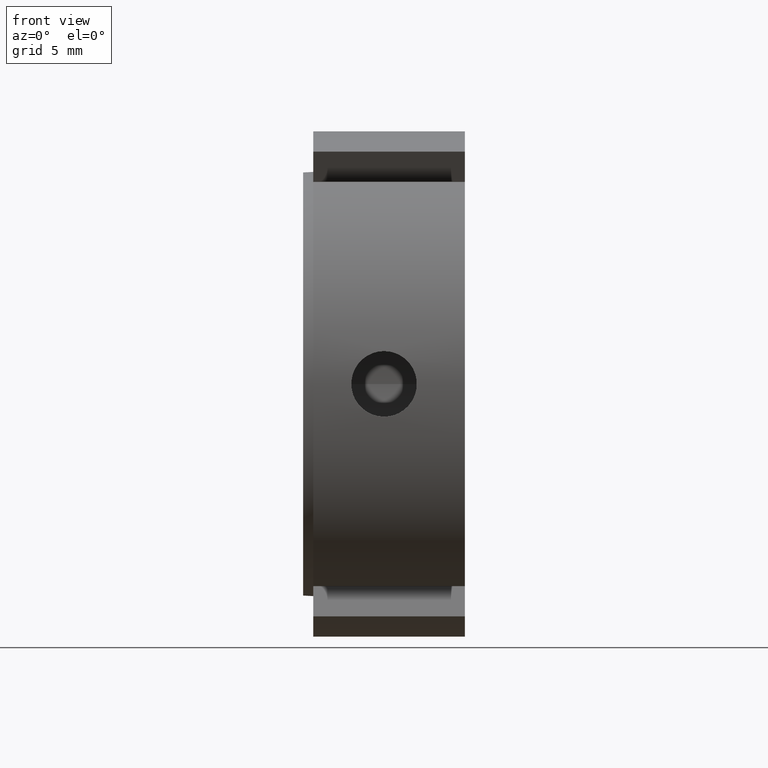
[diagram: clean part render]
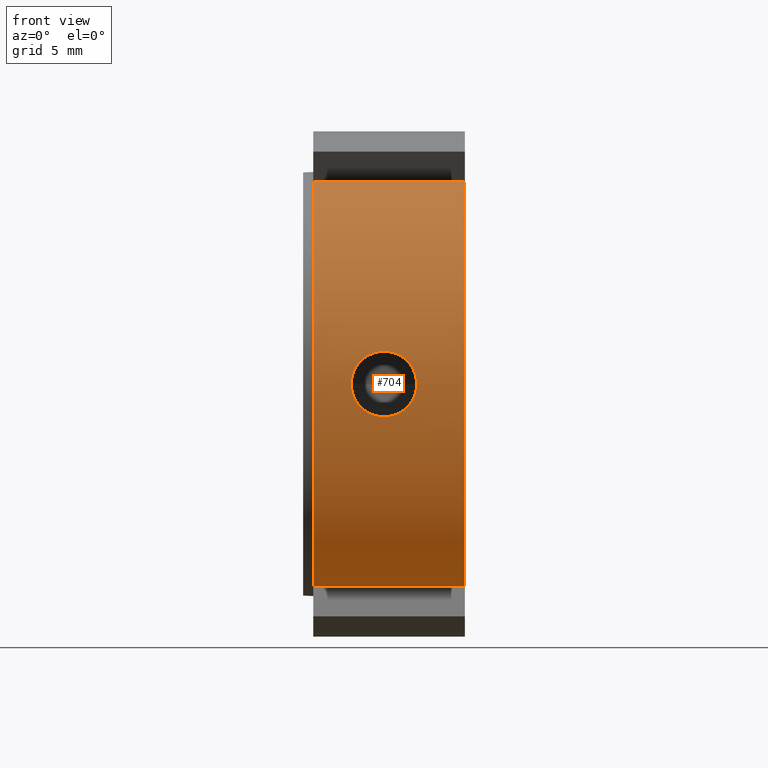
[diagram: same view with one face highlighted and labeled with its STEP entity id]
A machine part, front view. The second image highlights one B-rep face of the part: STEP entity #704.
In plain terms, the highlighted cylindrical surface (partial cylindrical patch) has radius 12.5 mm, axis along (1, 0, 0).
Its self-contained STEP definition (entity closure, byte-faithful):
#75=CARTESIAN_POINT('',(0.499999999999998,-7.503874928672091,-9.997092630102335));
#76=VERTEX_POINT('',#75);
#91=CARTESIAN_POINT('',(7.999999999999996,-7.503874928672091,-9.997092630102335));
#92=VERTEX_POINT('',#91);
#99=CARTESIAN_POINT('',(0.499999999999998,-7.503874928672092,-9.997092630102333));
#100=DIRECTION('',(1.0,0.0,0.0));
#101=VECTOR('',#100,7.499999999999998);
#102=LINE('',#99,#101);
#103=EDGE_CURVE('',#76,#92,#102,.T.);
#311=CARTESIAN_POINT('',(0.499999999999998,-7.503874928672083,9.997092630102340));
#312=VERTEX_POINT('',#311);
#321=CARTESIAN_POINT('',(7.999999999999996,-7.503874928672083,9.997092630102340));
#322=VERTEX_POINT('',#321);
#323=CARTESIAN_POINT('',(7.999999999999996,-7.503874928672083,9.997092630102340));
#324=DIRECTION('',(-1.0,0.0,0.0));
#325=VECTOR('',#324,7.499999999999998);
#326=LINE('',#323,#325);
#327=EDGE_CURVE('',#322,#312,#326,.T.);
#513=CARTESIAN_POINT('',(0.499999999999998,0.0,0.0));
#514=DIRECTION('',(1.0,0.0,0.0));
#515=DIRECTION('',(0.0,1.0,0.0));
#516=AXIS2_PLACEMENT_3D('',#513,#514,#515);
#517=CIRCLE('',#516,12.499999999999998);
#518=EDGE_CURVE('',#312,#76,#517,.T.);
#583=CARTESIAN_POINT('',(7.999999999999996,0.0,0.0));
#584=DIRECTION('',(1.0,0.0,0.0));
#585=DIRECTION('',(0.0,1.0,0.0));
#586=AXIS2_PLACEMENT_3D('',#583,#584,#585);
#587=CIRCLE('',#586,12.499999999999998);
#588=EDGE_CURVE('',#322,#92,#587,.T.);
#652=CARTESIAN_POINT('',(4.249999999999997,0.0,0.0));
#653=DIRECTION('',(1.0,0.0,0.0));
#654=DIRECTION('',(0.0,1.0,0.0));
#655=AXIS2_PLACEMENT_3D('',#652,#653,#654);
#656=CYLINDRICAL_SURFACE('',#655,12.499999999999998);
#657=ORIENTED_EDGE('',*,*,#103,.T.);
#658=ORIENTED_EDGE('',*,*,#588,.F.);
#659=ORIENTED_EDGE('',*,*,#327,.T.);
#660=ORIENTED_EDGE('',*,*,#518,.T.);
#661=EDGE_LOOP('',(#657,#658,#659,#660));
#662=FACE_OUTER_BOUND('',#661,.T.);
#663=CARTESIAN_POINT('',(3.999999999999996,-12.394448717066844,1.621000000000000));
#664=VERTEX_POINT('',#663);
#665=CARTESIAN_POINT('',(3.999999999999996,-12.394448717066844,1.621000000000000));
#666=CARTESIAN_POINT('',(4.203783961701885,-12.394448717066844,1.621000000000000));
#667=CARTESIAN_POINT('',(4.420992470797524,-12.399993182347322,1.580226680770943));
#668=CARTESIAN_POINT('',(4.820304367155238,-12.419963583124922,1.414726767963858));
#669=CARTESIAN_POINT('',(5.002427579897870,-12.434095025216557,1.290012604708913));
#670=CARTESIAN_POINT('',(5.290011211629800,-12.460577328781170,1.002428972976983));
#671=CARTESIAN_POINT('',(5.414726466705028,-12.474656743850588,0.820305155471852));
#672=CARTESIAN_POINT('',(5.580227178760655,-12.494507906543470,0.420991207816045));
#673=CARTESIAN_POINT('',(5.620999999999996,-12.499999999999996,0.203781987418423));
#674=CARTESIAN_POINT('',(5.620999999999996,-12.499999999999998,-0.203781987418423));
#675=CARTESIAN_POINT('',(5.580227178760655,-12.494507906543470,-0.420991207816044));
#676=CARTESIAN_POINT('',(5.414726466705028,-12.474656743850588,-0.820305155471852));
#677=CARTESIAN_POINT('',(5.290011211629801,-12.460577328781174,-1.002428972976983));
#678=CARTESIAN_POINT('',(5.002427579897870,-12.434095025216557,-1.290012604708912));
#679=CARTESIAN_POINT('',(4.820304367155238,-12.419963583124922,-1.414726767963858));
#680=CARTESIAN_POINT('',(4.420992470797525,-12.399993182347322,-1.580226680770942));
#681=CARTESIAN_POINT('',(4.203783961701885,-12.394448717066846,-1.621000000000000));
#682=CARTESIAN_POINT('',(3.796216038298108,-12.394448717066846,-1.621000000000000));
#683=CARTESIAN_POINT('',(3.579007529202468,-12.399993182347322,-1.580226680770943));
#684=CARTESIAN_POINT('',(3.179695632844754,-12.419963583124922,-1.414726767963858));
#685=CARTESIAN_POINT('',(2.997572420102121,-12.434095025216557,-1.290012604708913));
#686=CARTESIAN_POINT('',(2.709988788370192,-12.460577328781174,-1.002428972976983));
#687=CARTESIAN_POINT('',(2.585273533294962,-12.474656743850588,-0.820305155471852));
#688=CARTESIAN_POINT('',(2.419772821239336,-12.494507906543470,-0.420991207816045));
#689=CARTESIAN_POINT('',(2.378999999999996,-12.499999999999998,-0.203781987418424));
#690=CARTESIAN_POINT('',(2.378999999999996,-12.499999999999998,0.203781987418423));
#691=CARTESIAN_POINT('',(2.419772821239336,-12.494507906543470,0.420991207816044));
#692=CARTESIAN_POINT('',(2.585273533294962,-12.474656743850588,0.820305155471851));
#693=CARTESIAN_POINT('',(2.709988788370191,-12.460577328781174,1.002428972976983));
#694=CARTESIAN_POINT('',(2.997572420102121,-12.434095025216557,1.290012604708912));
#695=CARTESIAN_POINT('',(3.179695632844754,-12.419963583124922,1.414726767963858));
#696=CARTESIAN_POINT('',(3.579007529202468,-12.399993182347322,1.580226680770942));
#697=CARTESIAN_POINT('',(3.796216038298107,-12.394448717066844,1.621000000000000));
#698=CARTESIAN_POINT('',(3.999999999999996,-12.394448717066844,1.621000000000000));
#699=B_SPLINE_CURVE_WITH_KNOTS('',3,(#665,#666,#667,#668,#669,#670,#671,#672,#673,#674,#675,#676,#677,#678,#679,#680,#681,#682,#683,#684,#685,#686,#687,#688,#689,#690,#691,#692,#693,#694,#695,#696,#697,#698),.UNSPECIFIED.,.T.,.U.,(4,2,2,2,2,2,2,2,2,2,2,2,2,2,2,2,4),(0.0,0.061135188510567,0.122270377021133,0.183404973246660,0.244539569472187,0.305674165697714,0.366808761923241,0.427943950433808,0.489079138944374,0.550214327454941,0.611349515965507,0.672484112191034,0.733618708416561,0.794753304642088,0.855887900867615,0.917023089378182,0.978158277888748),.UNSPECIFIED.);
#700=EDGE_CURVE('',#664,#664,#699,.T.);
#701=ORIENTED_EDGE('',*,*,#700,.T.);
#702=EDGE_LOOP('',(#701));
#703=FACE_BOUND('',#702,.T.);
#704=ADVANCED_FACE('',(#662,#703),#656,.T.);